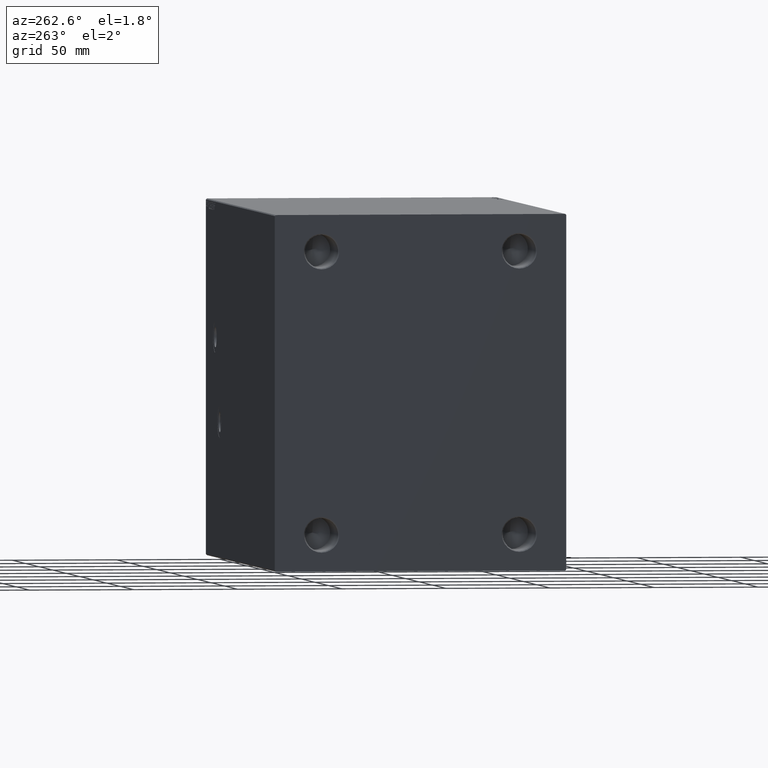
[diagram: clean part render]
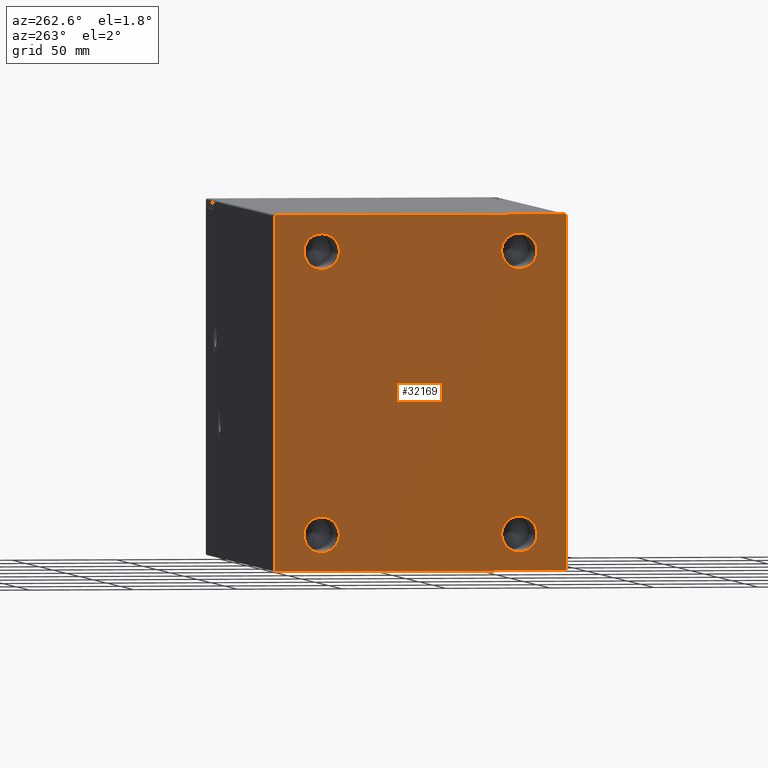
[diagram: same view with one face highlighted and labeled with its STEP entity id]
A machine part, auxiliary view. The second image highlights one B-rep face of the part: STEP entity #32169.
In plain terms, the highlighted planar face has unit normal (-1, -0, 0).
Its self-contained STEP definition (entity closure, byte-faithful):
#710 = EDGE_CURVE ( 'NONE', #23222, #40056, #6454, .T. ) ;
#1676 = LINE ( 'NONE', #19135, #20988 ) ;
#1753 = VERTEX_POINT ( 'NONE', #40489 ) ;
#2137 = DIRECTION ( 'NONE',  ( 0.000000000000000000, 1.000000000000000000, 0.000000000000000000 ) ) ;
#2276 = DIRECTION ( 'NONE',  ( 0.000000000000000000, 0.000000000000000000, -1.000000000000000000 ) ) ;
#2302 = ORIENTED_EDGE ( 'NONE', *, *, #36400, .F. ) ;
#2486 = LINE ( 'NONE', #26327, #27469 ) ;
#2583 = LINE ( 'NONE', #19603, #41366 ) ;
#3289 = ORIENTED_EDGE ( 'NONE', *, *, #8346, .F. ) ;
#3336 = EDGE_CURVE ( 'NONE', #1753, #37025, #4493, .T. ) ;
#4209 = EDGE_LOOP ( 'NONE', ( #22614, #34885 ) ) ;
#4493 = LINE ( 'NONE', #14913, #29722 ) ;
#4507 = DIRECTION ( 'NONE',  ( 0.000000000000000000, 0.000000000000000000, -1.000000000000000000 ) ) ;
#4644 = EDGE_LOOP ( 'NONE', ( #3289, #5577 ) ) ;
#5021 = ORIENTED_EDGE ( 'NONE', *, *, #18620, .F. ) ;
#5411 = EDGE_LOOP ( 'NONE', ( #23229, #29685, #27307, #40385, #37420, #39865, #37847, #43146 ) ) ;
#5447 = LINE ( 'NONE', #9511, #7769 ) ;
#5524 = LINE ( 'NONE', #12110, #8303 ) ;
#5577 = ORIENTED_EDGE ( 'NONE', *, *, #710, .F. ) ;
#6230 = DIRECTION ( 'NONE',  ( 0.000000000000000000, 0.000000000000000000, -1.000000000000000000 ) ) ;
#6382 = DIRECTION ( 'NONE',  ( 1.000000000000000000, -0.000000000000000000, -0.000000000000000000 ) ) ;
#6454 = CIRCLE ( 'NONE', #9338, 8.500000000000007105 ) ;
#6729 = DIRECTION ( 'NONE',  ( 0.000000000000000000, 0.000000000000000000, -1.000000000000000000 ) ) ;
#7451 = CARTESIAN_POINT ( 'NONE',  ( 255.0000000000000000, 47.50000000000000000, 58.99999999999998579 ) ) ;
#7548 = CIRCLE ( 'NONE', #12642, 8.500000000000007105 ) ;
#7644 = VERTEX_POINT ( 'NONE', #37141 ) ;
#7769 = VECTOR ( 'NONE', #37269, 1000.000000000000000 ) ;
#8090 = CIRCLE ( 'NONE', #31307, 8.500000000000007105 ) ;
#8303 = VECTOR ( 'NONE', #33249, 999.9999999999998863 ) ;
#8346 = EDGE_CURVE ( 'NONE', #40056, #23222, #8090, .T. ) ;
#8357 = FACE_BOUND ( 'NONE', #4209, .T. ) ;
#8395 = VERTEX_POINT ( 'NONE', #40888 ) ;
#9150 = DIRECTION ( 'NONE',  ( 1.000000000000000000, -0.000000000000000000, -0.000000000000000000 ) ) ;
#9338 = AXIS2_PLACEMENT_3D ( 'NONE', #9805, #41199, #41426 ) ;
#9351 = CARTESIAN_POINT ( 'NONE',  ( 255.0000000000000000, 70.00000000000000000, 85.00000000000000000 ) ) ;
#9362 = VERTEX_POINT ( 'NONE', #32904 ) ;
#9488 = EDGE_LOOP ( 'NONE', ( #20539, #5021 ) ) ;
#9511 = CARTESIAN_POINT ( 'NONE',  ( 255.0000000000000000, 70.00000000000002842, -85.00000000000001421 ) ) ;
#9713 = DIRECTION ( 'NONE',  ( 0.000000000000000000, 0.000000000000000000, -1.000000000000000000 ) ) ;
#9737 = VERTEX_POINT ( 'NONE', #18234 ) ;
#9742 = CIRCLE ( 'NONE', #25820, 8.500000000000007105 ) ;
#9805 = CARTESIAN_POINT ( 'NONE',  ( 255.0000000000000000, -47.50000000000000000, 67.49999999999997158 ) ) ;
#10159 = CARTESIAN_POINT ( 'NONE',  ( 255.0000000000000000, -47.50000000000000000, 67.49999999999997158 ) ) ;
#11314 = CARTESIAN_POINT ( 'NONE',  ( 255.0000000000000000, -47.50000000000000000, 58.99999999999998579 ) ) ;
#11664 = CARTESIAN_POINT ( 'NONE',  ( 255.0000000000000000, -70.00000000000000000, -84.49999999999998579 ) ) ;
#11758 = FACE_BOUND ( 'NONE', #4644, .T. ) ;
#12049 = CARTESIAN_POINT ( 'NONE',  ( 255.0000000000000000, 47.50000000000000000, -67.50000000000002842 ) ) ;
#12110 = CARTESIAN_POINT ( 'NONE',  ( 255.0000000000000000, 77.24999999999901945, 77.25000000000116529 ) ) ;
#12425 = EDGE_CURVE ( 'NONE', #37025, #13867, #28082, .T. ) ;
#12642 = AXIS2_PLACEMENT_3D ( 'NONE', #20007, #6382, #17031 ) ;
#12758 = DIRECTION ( 'NONE',  ( 0.000000000000000000, -1.000000000000000000, -2.973811673103097665E-16 ) ) ;
#13867 = VERTEX_POINT ( 'NONE', #11664 ) ;
#14716 = VERTEX_POINT ( 'NONE', #15753 ) ;
#14913 = CARTESIAN_POINT ( 'NONE',  ( 255.0000000000000000, -77.24999999999805311, 77.25000000000233058 ) ) ;
#14928 = FACE_BOUND ( 'NONE', #9488, .T. ) ;
#14967 = CARTESIAN_POINT ( 'NONE',  ( 255.0000000000000000, -47.50000000000000000, -67.50000000000002842 ) ) ;
#15753 = CARTESIAN_POINT ( 'NONE',  ( 255.0000000000000000, 47.50000000000000000, -76.00000000000002842 ) ) ;
#15863 = DIRECTION ( 'NONE',  ( -0.000000000000000000, 0.7071067811865279218, -0.7071067811865672237 ) ) ;
#16211 = DIRECTION ( 'NONE',  ( 1.000000000000000000, -0.000000000000000000, -0.000000000000000000 ) ) ;
#17031 = DIRECTION ( 'NONE',  ( 0.000000000000000000, 0.000000000000000000, -1.000000000000000000 ) ) ;
#17217 = AXIS2_PLACEMENT_3D ( 'NONE', #31767, #35872, #4507 ) ;
#18234 = CARTESIAN_POINT ( 'NONE',  ( 255.0000000000000000, 47.50000000000000000, -59.00000000000003553 ) ) ;
#18620 = EDGE_CURVE ( 'NONE', #26729, #35450, #7548, .T. ) ;
#18915 = DIRECTION ( 'NONE',  ( -0.000000000000000000, 0.7071067811865672237, 0.7071067811865279218 ) ) ;
#19135 = CARTESIAN_POINT ( 'NONE',  ( 255.0000000000000000, 77.24999999999806732, -77.25000000000235900 ) ) ;
#19434 = EDGE_CURVE ( 'NONE', #9362, #1753, #36663, .T. ) ;
#19603 = CARTESIAN_POINT ( 'NONE',  ( 255.0000000000000000, -70.00000000000000000, -85.00000000000001421 ) ) ;
#20007 = CARTESIAN_POINT ( 'NONE',  ( 255.0000000000000000, 47.50000000000000000, 67.49999999999997158 ) ) ;
#20450 = VERTEX_POINT ( 'NONE', #28489 ) ;
#20539 = ORIENTED_EDGE ( 'NONE', *, *, #31764, .F. ) ;
#20988 = VECTOR ( 'NONE', #18915, 1000.000000000000000 ) ;
#22614 = ORIENTED_EDGE ( 'NONE', *, *, #28468, .F. ) ;
#23222 = VERTEX_POINT ( 'NONE', #11314 ) ;
#23229 = ORIENTED_EDGE ( 'NONE', *, *, #19434, .T. ) ;
#23883 = EDGE_CURVE ( 'NONE', #7644, #9362, #5524, .T. ) ;
#23895 = EDGE_CURVE ( 'NONE', #20450, #40939, #9742, .T. ) ;
#25762 = EDGE_LOOP ( 'NONE', ( #34433, #2302 ) ) ;
#25820 = AXIS2_PLACEMENT_3D ( 'NONE', #37346, #9150, #43963 ) ;
#26327 = CARTESIAN_POINT ( 'NONE',  ( 255.0000000000000000, -77.25000000000194689, -77.24999999999764100 ) ) ;
#26351 = DIRECTION ( 'NONE',  ( 1.000000000000000000, -0.000000000000000000, -0.000000000000000000 ) ) ;
#26555 = CIRCLE ( 'NONE', #32380, 8.500000000000007105 ) ;
#26561 = CARTESIAN_POINT ( 'NONE',  ( 255.0000000000000000, 47.50000000000000000, 67.49999999999997158 ) ) ;
#26729 = VERTEX_POINT ( 'NONE', #7451 ) ;
#26826 = AXIS2_PLACEMENT_3D ( 'NONE', #12049, #26351, #40253 ) ;
#27307 = ORIENTED_EDGE ( 'NONE', *, *, #12425, .T. ) ;
#27469 = VECTOR ( 'NONE', #15863, 1000.000000000000000 ) ;
#28082 = LINE ( 'NONE', #41301, #39456 ) ;
#28201 = CARTESIAN_POINT ( 'NONE',  ( 255.0000000000000000, 47.50000000000000000, 75.99999999999997158 ) ) ;
#28468 = EDGE_CURVE ( 'NONE', #40939, #20450, #26555, .T. ) ;
#28489 = CARTESIAN_POINT ( 'NONE',  ( 255.0000000000000000, -47.50000000000000000, -76.00000000000002842 ) ) ;
#28787 = DIRECTION ( 'NONE',  ( 0.000000000000000000, -0.7071067811865671127, -0.7071067811865279218 ) ) ;
#28838 = DIRECTION ( 'NONE',  ( 1.000000000000000000, -0.000000000000000000, -0.000000000000000000 ) ) ;
#29019 = CIRCLE ( 'NONE', #26826, 8.500000000000007105 ) ;
#29685 = ORIENTED_EDGE ( 'NONE', *, *, #3336, .T. ) ;
#29722 = VECTOR ( 'NONE', #28787, 1000.000000000000000 ) ;
#30404 = DIRECTION ( 'NONE',  ( 1.000000000000000000, -0.000000000000000000, -0.000000000000000000 ) ) ;
#31307 = AXIS2_PLACEMENT_3D ( 'NONE', #10159, #30404, #9713 ) ;
#31764 = EDGE_CURVE ( 'NONE', #35450, #26729, #33898, .T. ) ;
#31767 = CARTESIAN_POINT ( 'NONE',  ( 255.0000000000000000, 0.000000000000000000, 0.000000000000000000 ) ) ;
#31840 = CIRCLE ( 'NONE', #44252, 8.500000000000007105 ) ;
#31916 = EDGE_CURVE ( 'NONE', #45009, #7644, #5447, .T. ) ;
#32169 = ADVANCED_FACE ( 'NONE', ( #14928, #11758, #8357, #39067, #38845 ), #35653, .T. ) ;
#32247 = VECTOR ( 'NONE', #12758, 1000.000000000000000 ) ;
#32257 = DIRECTION ( 'NONE',  ( 0.000000000000000000, 0.000000000000000000, -1.000000000000000000 ) ) ;
#32380 = AXIS2_PLACEMENT_3D ( 'NONE', #14967, #28838, #32257 ) ;
#32542 = CARTESIAN_POINT ( 'NONE',  ( 255.0000000000000000, -47.50000000000000000, 75.99999999999997158 ) ) ;
#32904 = CARTESIAN_POINT ( 'NONE',  ( 255.0000000000000000, 69.49999999999995737, 85.00000000000000000 ) ) ;
#33249 = DIRECTION ( 'NONE',  ( -0.000000000000000000, -0.7071067811865574537, 0.7071067811865376918 ) ) ;
#33898 = CIRCLE ( 'NONE', #42659, 8.500000000000007105 ) ;
#34433 = ORIENTED_EDGE ( 'NONE', *, *, #43063, .F. ) ;
#34885 = ORIENTED_EDGE ( 'NONE', *, *, #23895, .F. ) ;
#35450 = VERTEX_POINT ( 'NONE', #28201 ) ;
#35653 = PLANE ( 'NONE',  #17217 ) ;
#35872 = DIRECTION ( 'NONE',  ( 1.000000000000000000, 0.000000000000000000, 0.000000000000000000 ) ) ;
#36400 = EDGE_CURVE ( 'NONE', #14716, #9737, #31840, .T. ) ;
#36663 = LINE ( 'NONE', #9351, #32247 ) ;
#37025 = VERTEX_POINT ( 'NONE', #40866 ) ;
#37141 = CARTESIAN_POINT ( 'NONE',  ( 255.0000000000000000, 70.00000000000000000, 84.49999999999995737 ) ) ;
#37269 = DIRECTION ( 'NONE',  ( 0.000000000000000000, -1.632680918566406300E-16, 1.000000000000000000 ) ) ;
#37346 = CARTESIAN_POINT ( 'NONE',  ( 255.0000000000000000, -47.50000000000000000, -67.50000000000002842 ) ) ;
#37398 = EDGE_CURVE ( 'NONE', #41297, #45009, #1676, .T. ) ;
#37420 = ORIENTED_EDGE ( 'NONE', *, *, #38985, .T. ) ;
#37847 = ORIENTED_EDGE ( 'NONE', *, *, #31916, .T. ) ;
#38845 = FACE_OUTER_BOUND ( 'NONE', #5411, .T. ) ;
#38985 = EDGE_CURVE ( 'NONE', #8395, #41297, #2583, .T. ) ;
#39067 = FACE_BOUND ( 'NONE', #25762, .T. ) ;
#39089 = CARTESIAN_POINT ( 'NONE',  ( 255.0000000000000000, -47.50000000000000000, -59.00000000000003553 ) ) ;
#39456 = VECTOR ( 'NONE', #6729, 1000.000000000000000 ) ;
#39865 = ORIENTED_EDGE ( 'NONE', *, *, #37398, .T. ) ;
#39968 = CARTESIAN_POINT ( 'NONE',  ( 255.0000000000000000, 69.50000000000000000, -85.00000000000001421 ) ) ;
#40056 = VERTEX_POINT ( 'NONE', #32542 ) ;
#40133 = CARTESIAN_POINT ( 'NONE',  ( 255.0000000000000000, 47.50000000000000000, -67.50000000000002842 ) ) ;
#40253 = DIRECTION ( 'NONE',  ( 0.000000000000000000, 0.000000000000000000, -1.000000000000000000 ) ) ;
#40385 = ORIENTED_EDGE ( 'NONE', *, *, #40524, .T. ) ;
#40489 = CARTESIAN_POINT ( 'NONE',  ( 255.0000000000000000, -69.50000000000000000, 84.99999999999997158 ) ) ;
#40524 = EDGE_CURVE ( 'NONE', #13867, #8395, #2486, .T. ) ;
#40866 = CARTESIAN_POINT ( 'NONE',  ( 255.0000000000000000, -70.00000000000000000, 84.49999999999998579 ) ) ;
#40888 = CARTESIAN_POINT ( 'NONE',  ( 255.0000000000000000, -69.50000000000000000, -85.00000000000001421 ) ) ;
#40939 = VERTEX_POINT ( 'NONE', #39089 ) ;
#41199 = DIRECTION ( 'NONE',  ( 1.000000000000000000, -0.000000000000000000, -0.000000000000000000 ) ) ;
#41297 = VERTEX_POINT ( 'NONE', #39968 ) ;
#41301 = CARTESIAN_POINT ( 'NONE',  ( 255.0000000000000000, -70.00000000000000000, 84.99999999999997158 ) ) ;
#41366 = VECTOR ( 'NONE', #2137, 1000.000000000000000 ) ;
#41426 = DIRECTION ( 'NONE',  ( 0.000000000000000000, 0.000000000000000000, -1.000000000000000000 ) ) ;
#42521 = CARTESIAN_POINT ( 'NONE',  ( 255.0000000000000000, 70.00000000000002842, -84.50000000000001421 ) ) ;
#42659 = AXIS2_PLACEMENT_3D ( 'NONE', #26561, #43886, #2276 ) ;
#43063 = EDGE_CURVE ( 'NONE', #9737, #14716, #29019, .T. ) ;
#43146 = ORIENTED_EDGE ( 'NONE', *, *, #23883, .T. ) ;
#43886 = DIRECTION ( 'NONE',  ( 1.000000000000000000, -0.000000000000000000, -0.000000000000000000 ) ) ;
#43963 = DIRECTION ( 'NONE',  ( 0.000000000000000000, 0.000000000000000000, -1.000000000000000000 ) ) ;
#44252 = AXIS2_PLACEMENT_3D ( 'NONE', #40133, #16211, #6230 ) ;
#45009 = VERTEX_POINT ( 'NONE', #42521 ) ;